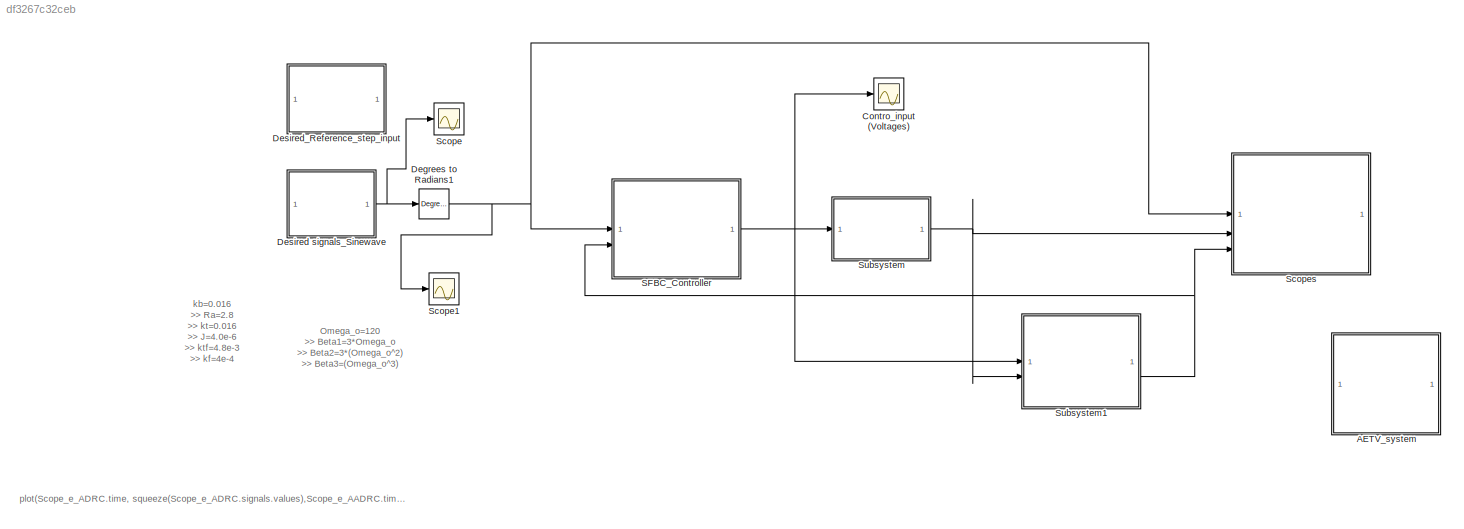
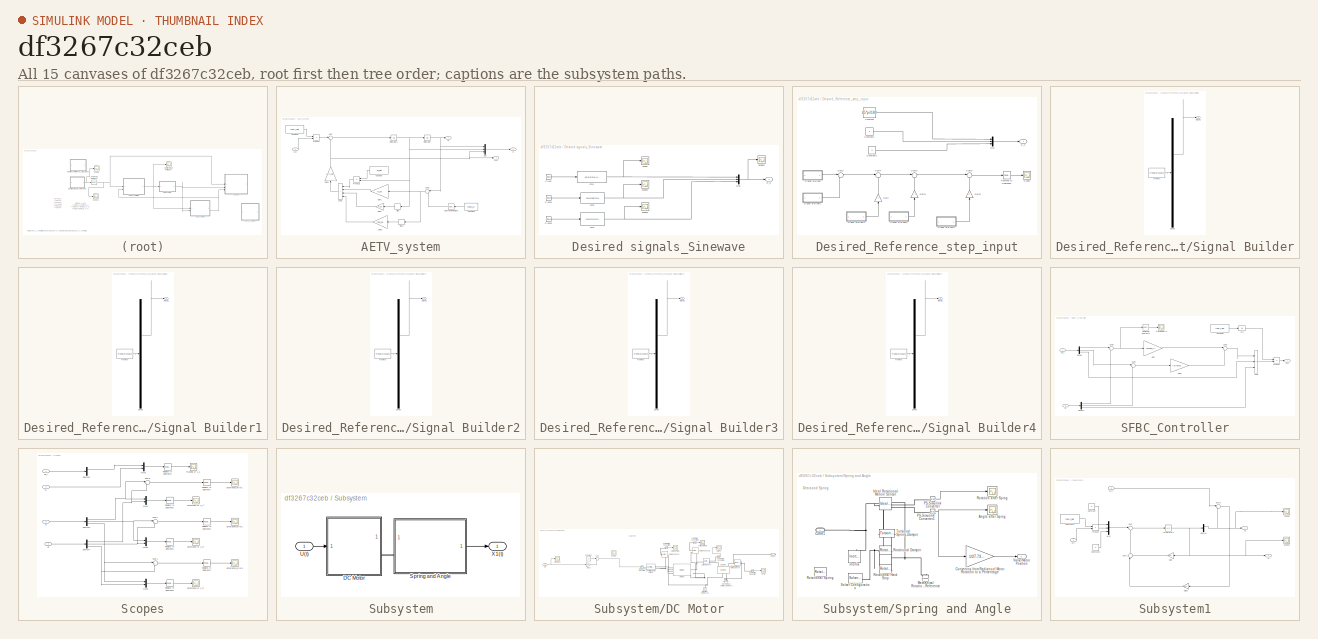
[diagram: thumbnail index - all 15 canvases of the model, root first then tree order]
MODEL slx_df3267c32ceb
KIND model
CONFIG AbsTol = auto
CONFIG EnableMultiTasking = on
CONFIG FixedStep = 0.001
CONFIG MaxStep = auto
CONFIG MinStep = auto
CONFIG PreLoadFcn = run("Control_Setting.m")\nrun("System_Setting.m")\n
CONFIG RelTol = 1e-3
CONFIG SampleTimeConstraint = Unconstrained
CONFIG SolverName = ode23t
CONFIG StartTime = 0.0
CONFIG StopTime = 15
BLOCK [SubSystem] AETV_system
  Commented = on
  NameLocation = top
BLOCK [Constant] AETV_system/Constant
  NameLocation = top
  Value = -B_aet
BLOCK [Constant] AETV_system/Constant1
  NameLocation = top
  Value = theta_o
BLOCK [Constant] AETV_system/Constant2
  Value = roa/J_aet
BLOCK [Reference] AETV_system/Degrees to Radians  REF=simulink_extras/Transformations/Degrees to
Radians
  NameLocation = top
  SourceBlock = simulink_extras/Transformations/Degrees to\nRadians
  SourceType = DegreesToRadians
BLOCK [Outport] AETV_system/F(x)
  Port = 3
BLOCK [Gain] AETV_system/Gain1
  Gain = -K_sp
  NameLocation = top
BLOCK [Gain] AETV_system/Gain2
  Gain = -F_so
  NameLocation = top
BLOCK [Gain] AETV_system/Gain3
  Gain = -Toa_ho
  NameLocation = top
BLOCK [Gain] AETV_system/Gain4
  Gain = 1/(J_aet)
  NameLocation = right
BLOCK [Integrator] AETV_system/Integrator
  InitialCondition = 12*pi/180
BLOCK [Integrator] AETV_system/Integrator1
BLOCK [Mux] AETV_system/Mux
  DisplayOption = bar
  Inputs = 3
BLOCK [Product] AETV_system/Product
  RndMeth = Zero
BLOCK [Product] AETV_system/Product1
  NameLocation = top
  RndMeth = Zero
BLOCK [Signum] AETV_system/Sign
  NameLocation = top
BLOCK [Signum] AETV_system/Sign1
  NameLocation = top
BLOCK [Sum] AETV_system/Sum
  Inputs = |++
BLOCK [Sum] AETV_system/Sum1
  IconShape = rectangular
  Inputs = |++++
  NameLocation = top
BLOCK [Sum] AETV_system/Sum2
  Inputs = |+-
  NameLocation = top
BLOCK [Inport] AETV_system/U(t)
BLOCK [Outport] AETV_system/X1
BLOCK [Outport] AETV_system/Xi
  Port = 2
BLOCK [Scope] Contro_input (Voltages)
  Floating = off
  NumInputPorts = 1
  ScopeSpecificationString = Simulink.scopes.TimeScopeBlockCfg('CurrentConfiguration', extmgr.ConfigurationSet(extmgr.Configuration('Core','General UI',true),extmgr.Configuration('Core','Source UI',true),extmgr.Configuration('Sources','WiredSimulink',true,'DataLogging',true,'DataLoggingVariableName','Scope_V_ADRC','DataLoggingSaveFormat','StructureWithTime','DataLoggingDecimation','1','DataLoggingDecimateData',true),extmgr.Co...<+1772ch>
BLOCK [Reference] Degrees to Radians1  REF=simulink_extras/Transformations/Degrees to
Radians
  SourceBlock = simulink_extras/Transformations/Degrees to\nRadians
  SourceType = DegreesToRadians
BLOCK [SubSystem] Desired signals_Sinewave
BLOCK [Clock] Desired signals_Sinewave/Clock
BLOCK [Clock] Desired signals_Sinewave/Clock1
BLOCK [Clock] Desired signals_Sinewave/Clock2
BLOCK [Fcn] Desired signals_Sinewave/Fcn1
  Expr = 10*sin(2*u)+10+7
BLOCK [Fcn] Desired signals_Sinewave/Fcn2
  Expr = 10*2*cos(2*u)
BLOCK [Fcn] Desired signals_Sinewave/Fcn3
  Expr = -10*2*2*sin(2*u)
BLOCK [Mux] Desired signals_Sinewave/Mux
  DisplayOption = bar
  Inputs = 3
BLOCK [Scope] Desired signals_Sinewave/Scope
  Floating = off
  NumInputPorts = 1
  ScopeSpecificationString = Simulink.scopes.TimeScopeBlockCfg('CurrentConfiguration', extmgr.ConfigurationSet(extmgr.Configuration('Core','General UI',true),extmgr.Configuration('Core','Source UI',true),extmgr.Configuration('Sources','WiredSimulink',true,'DataLoggingVariableName','ScopeData1'),extmgr.Configuration('Visuals','Time Domain',true,'SerializedDisplays',{struct('MinYLimReal','4.50012','MaxYLimReal','29.49999','YLab...<+1487ch>
BLOCK [Scope] Desired signals_Sinewave/Scope1
  Floating = off
  NumInputPorts = 1
  ScopeSpecificationString = Simulink.scopes.TimeScopeBlockCfg('CurrentConfiguration', extmgr.ConfigurationSet(extmgr.Configuration('Core','General UI',true),extmgr.Configuration('Core','Source UI',true),extmgr.Configuration('Sources','WiredSimulink',true,'DataLoggingVariableName','ScopeData2'),extmgr.Configuration('Visuals','Time Domain',true,'SerializedDisplays',{struct('MinYLimReal','-25.00000','MaxYLimReal','25.00000','YL...<+1490ch>
BLOCK [Scope] Desired signals_Sinewave/Scope2
  Floating = off
  NumInputPorts = 1
  ScopeSpecificationString = Simulink.scopes.TimeScopeBlockCfg('CurrentConfiguration', extmgr.ConfigurationSet(extmgr.Configuration('Core','General UI',true),extmgr.Configuration('Core','Source UI',true),extmgr.Configuration('Sources','WiredSimulink',true,'DataLoggingVariableName','ScopeData3'),extmgr.Configuration('Visuals','Time Domain',true,'SerializedDisplays',{struct('MinYLimReal','-49.99994','MaxYLimReal','49.99954','YL...<+1491ch>
BLOCK [Scope] Desired signals_Sinewave/Scope3
  Floating = off
  NumInputPorts = 1
  ScopeSpecificationString = Simulink.scopes.TimeScopeBlockCfg('CurrentConfiguration', extmgr.ConfigurationSet(extmgr.Configuration('Core','General UI',true),extmgr.Configuration('Core','Source UI',true),extmgr.Configuration('Sources','WiredSimulink',true,'DataLoggingVariableName','ScopeData4'),extmgr.Configuration('Visuals','Time Domain',true,'SerializedDisplays',{struct('MinYLimReal','-49.99994','MaxYLimReal','49.99954','YL...<+1472ch>
BLOCK [Outport] Desired signals_Sinewave/xi_d
BLOCK [SubSystem] Desired_Reference_step_input
BLOCK [Constant] Desired_Reference_step_input/Constant
  Value = 45*pi/180
BLOCK [Constant] Desired_Reference_step_input/Constant1
  Value = 0
BLOCK [Constant] Desired_Reference_step_input/Constant2
  Value = 0
BLOCK [Gain] Desired_Reference_step_input/Gain
  Gain = -1
  NameLocation = right
BLOCK [Gain] Desired_Reference_step_input/Gain1
  Gain = -1
  NameLocation = right
BLOCK [Gain] Desired_Reference_step_input/Gain2
  NameLocation = right
BLOCK [Mux] Desired_Reference_step_input/Mux
  DisplayOption = bar
  Inputs = 3
BLOCK [Reference] Desired_Reference_step_input/Radians to Degrees2  REF=simulink_extras/Transformations/Radians
to Degrees
  SourceBlock = simulink_extras/Transformations/Radians\nto Degrees
  SourceType = RadiansToDegrees
BLOCK [Scope] Desired_Reference_step_input/Scope
  Floating = off
  NumInputPorts = 1
  ScopeSpecificationString = C++SS(StrPVP('Location','[10, 60, 1376, 738]'),StrPVP('Open','off'),MxPVP('AxesTitles',54,'struct(''axes1'',''%<SignalLabel>'')'),MxPVP('ScopeGraphics',57,'struct(''FigureColor'',''[0.5 0.5 0.5]'',''AxesColor'',''[0 0 0]'',''AxesTickColor'',''[1 1 1]'',''LineColors'',''[1 1 0;1 0 1;0 1 1;1 0 0;0 1 0;0 0 1]'',''LineStyles'',''-|-|-|-|-|-'',''LineWidths'',''[0.5 0.5 0.5 0.5 0.5 0.5]'',''MarkerStyles...<+275ch>
BLOCK [SubSystem] Desired_Reference_step_input/Signal Builder
  ClipboardFcn = sigbuilder_block('clipboard');
  CloseFcn = sigbuilder_block('close');
  ContinueFcn = sigbuilder_block('continue')
  CopyFcn = sigbuilder_block('copy');
  DeleteFcn = sigbuilder_block('delete');
  LoadFcn = sigbuilder_block('load');
  MaskHideContents = on
  ModelCloseFcn = sigbuilder_block('modelClose');
  NameChangeFcn = sigbuilder_block('namechange');
  OpenFcn = sigbuilder_block('open',[437.25 117.75 550.5 394.5 ]);
  PauseFcn = sigbuilder_block('pause')
  PreSaveFcn = sigbuilder_block('preSave');
  StartFcn = sigbuilder_block('start');
  StopFcn = sigbuilder_block('stop');
  Tag = STV Subsys
BLOCK [Demux] Desired_Reference_step_input/Signal Builder/Demux
  DisplayOption = none
  Outputs = 1
  Tag = STV Demux
BLOCK [FromWorkspace] Desired_Reference_step_input/Signal Builder/FromWs
  Tag = STV FromWs
  VariableName = tuvar
BLOCK [Outport] Desired_Reference_step_input/Signal Builder/Signal 1
  Tag = STV Outport
BLOCK [SubSystem] Desired_Reference_step_input/Signal Builder1
  ClipboardFcn = sigbuilder_block('clipboard');
  CloseFcn = sigbuilder_block('close');
  ContinueFcn = sigbuilder_block('continue')
  CopyFcn = sigbuilder_block('copy');
  DeleteFcn = sigbuilder_block('delete');
  LoadFcn = sigbuilder_block('load');
  MaskHideContents = on
  ModelCloseFcn = sigbuilder_block('modelClose');
  NameChangeFcn = sigbuilder_block('namechange');
  OpenFcn = sigbuilder_block('open',[437.25 117.75 550.5 394.5 ]);
  PauseFcn = sigbuilder_block('pause')
  PreSaveFcn = sigbuilder_block('preSave');
  StartFcn = sigbuilder_block('start');
  StopFcn = sigbuilder_block('stop');
  Tag = STV Subsys
BLOCK [Demux] Desired_Reference_step_input/Signal Builder1/Demux
  DisplayOption = none
  Outputs = 1
  Tag = STV Demux
BLOCK [FromWorkspace] Desired_Reference_step_input/Signal Builder1/FromWs
  Tag = STV FromWs
  VariableName = tuvar
BLOCK [Outport] Desired_Reference_step_input/Signal Builder1/Signal 1
  Tag = STV Outport
BLOCK [SubSystem] Desired_Reference_step_input/Signal Builder2
  ClipboardFcn = sigbuilder_block('clipboard');
  CloseFcn = sigbuilder_block('close');
  ContinueFcn = sigbuilder_block('continue')
  CopyFcn = sigbuilder_block('copy');
  DeleteFcn = sigbuilder_block('delete');
  LoadFcn = sigbuilder_block('load');
  MaskHideContents = on
  ModelCloseFcn = sigbuilder_block('modelClose');
  NameChangeFcn = sigbuilder_block('namechange');
  OpenFcn = sigbuilder_block('open',[437.25 117.75 550.5 394.5 ]);
  PauseFcn = sigbuilder_block('pause')
  PreSaveFcn = sigbuilder_block('preSave');
  StartFcn = sigbuilder_block('start');
  StopFcn = sigbuilder_block('stop');
  Tag = STV Subsys
BLOCK [Demux] Desired_Reference_step_input/Signal Builder2/Demux
  DisplayOption = none
  Outputs = 1
  Tag = STV Demux
BLOCK [FromWorkspace] Desired_Reference_step_input/Signal Builder2/FromWs
  Tag = STV FromWs
  VariableName = tuvar
BLOCK [Outport] Desired_Reference_step_input/Signal Builder2/Signal 1
  Tag = STV Outport
BLOCK [SubSystem] Desired_Reference_step_input/Signal Builder3
  ClipboardFcn = sigbuilder_block('clipboard');
  CloseFcn = sigbuilder_block('close');
  ContinueFcn = sigbuilder_block('continue')
  CopyFcn = sigbuilder_block('copy');
  DeleteFcn = sigbuilder_block('delete');
  LoadFcn = sigbuilder_block('load');
  MaskHideContents = on
  ModelCloseFcn = sigbuilder_block('modelClose');
  NameChangeFcn = sigbuilder_block('namechange');
  OpenFcn = sigbuilder_block('open',[437.25 117.75 550.5 394.5 ]);
  PauseFcn = sigbuilder_block('pause')
  PreSaveFcn = sigbuilder_block('preSave');
  StartFcn = sigbuilder_block('start');
  StopFcn = sigbuilder_block('stop');
  Tag = STV Subsys
BLOCK [Demux] Desired_Reference_step_input/Signal Builder3/Demux
  DisplayOption = none
  Outputs = 1
  Tag = STV Demux
BLOCK [FromWorkspace] Desired_Reference_step_input/Signal Builder3/FromWs
  Tag = STV FromWs
  VariableName = tuvar
BLOCK [Outport] Desired_Reference_step_input/Signal Builder3/Signal 1
  Tag = STV Outport
BLOCK [SubSystem] Desired_Reference_step_input/Signal Builder4
  ClipboardFcn = sigbuilder_block('clipboard');
  CloseFcn = sigbuilder_block('close');
  ContinueFcn = sigbuilder_block('continue')
  CopyFcn = sigbuilder_block('copy');
  DeleteFcn = sigbuilder_block('delete');
  LoadFcn = sigbuilder_block('load');
  MaskHideContents = on
  ModelCloseFcn = sigbuilder_block('modelClose');
  NameChangeFcn = sigbuilder_block('namechange');
  OpenFcn = sigbuilder_block('open',[437.25 117.75 550.5 394.5 ]);
  PauseFcn = sigbuilder_block('pause')
  PreSaveFcn = sigbuilder_block('preSave');
  StartFcn = sigbuilder_block('start');
  StopFcn = sigbuilder_block('stop');
  Tag = STV Subsys
BLOCK [Demux] Desired_Reference_step_input/Signal Builder4/Demux
  DisplayOption = none
  Outputs = 1
  Tag = STV Demux
BLOCK [FromWorkspace] Desired_Reference_step_input/Signal Builder4/FromWs
  Tag = STV FromWs
  VariableName = tuvar
BLOCK [Outport] Desired_Reference_step_input/Signal Builder4/Signal 1
  Tag = STV Outport
BLOCK [Sum] Desired_Reference_step_input/Sum2
  Inputs = |++
BLOCK [Sum] Desired_Reference_step_input/Sum3
  Inputs = |++
BLOCK [Sum] Desired_Reference_step_input/Sum4
  Inputs = |++
BLOCK [Sum] Desired_Reference_step_input/Sum5
  Inputs = |+-
BLOCK [Outport] Desired_Reference_step_input/xi_d
BLOCK [SubSystem] SFBC_Controller
BLOCK [Constant] SFBC_Controller/Constant2
  Value = roa/J_aet
BLOCK [Demux] SFBC_Controller/Demux
  Outputs = 3
BLOCK [Demux] SFBC_Controller/Demux1
  Outputs = 3
BLOCK [Fcn] SFBC_Controller/Fcn
  Expr = 1/u
BLOCK [Gain] SFBC_Controller/Gain
  Gain = (omga_c)^2
BLOCK [Gain] SFBC_Controller/Gain1
  Gain = (2*(omga_c))
BLOCK [Product] SFBC_Controller/Product
  RndMeth = Zero
BLOCK [Reference] SFBC_Controller/Radians to Degrees4  REF=simulink_extras/Transformations/Radians
to Degrees
  NameLocation = top
  SourceBlock = simulink_extras/Transformations/Radians\nto Degrees
  SourceType = RadiansToDegrees
BLOCK [Sum] SFBC_Controller/Sum1
  Inputs = |++
BLOCK [Sum] SFBC_Controller/Sum2
  IconShape = rectangular
  Inputs = |++-
BLOCK [Sum] SFBC_Controller/Sum3
  Inputs = |+-
BLOCK [Sum] SFBC_Controller/Sum4
  Inputs = |+-
BLOCK [Scope] SFBC_Controller/Tracking erro
  Floating = off
  NumInputPorts = 1
  ScopeSpecificationString = Simulink.scopes.TimeScopeBlockCfg('CurrentConfiguration', extmgr.ConfigurationSet(extmgr.Configuration('Core','General UI',true),extmgr.Configuration('Core','Source UI',true),extmgr.Configuration('Sources','WiredSimulink',true,'DataLogging',true,'DataLoggingVariableName','Scope_e_ADRC','DataLoggingSaveFormat','StructureWithTime','DataLoggingDecimation','1','DataLoggingDecimateData',true),extmgr.Co...<+1758ch>
BLOCK [Outport] SFBC_Controller/U (t)
BLOCK [Inport] SFBC_Controller/Xd_i
BLOCK [Inport] SFBC_Controller/Xi^
  Port = 2
BLOCK [Scope] Scope
  Floating = off
  NumInputPorts = 1
  ScopeSpecificationString = Simulink.scopes.TimeScopeBlockCfg('CurrentConfiguration', extmgr.ConfigurationSet(extmgr.Configuration('Core','General UI',true),extmgr.Configuration('Core','Source UI',true),extmgr.Configuration('Sources','WiredSimulink',true,'DataLoggingVariableName','ScopeData1'),extmgr.Configuration('Visuals','Time Domain',true,'SerializedDisplays',{struct('MinYLimReal','-49.99994','MaxYLimReal','49.99954','YL...<+1568ch>
BLOCK [Scope] Scope1
  Floating = off
  NumInputPorts = 1
  ScopeSpecificationString = Simulink.scopes.TimeScopeBlockCfg('CurrentConfiguration', extmgr.ConfigurationSet(extmgr.Configuration('Core','General UI',true),extmgr.Configuration('Core','Source UI',true),extmgr.Configuration('Sources','WiredSimulink',true,'DataLoggingVariableName','ScopeData2'),extmgr.Configuration('Visuals','Time Domain',true,'SerializedDisplays',{struct('MinYLimReal','-0.87266','MaxYLimReal','0.87266','YLab...<+1549ch>
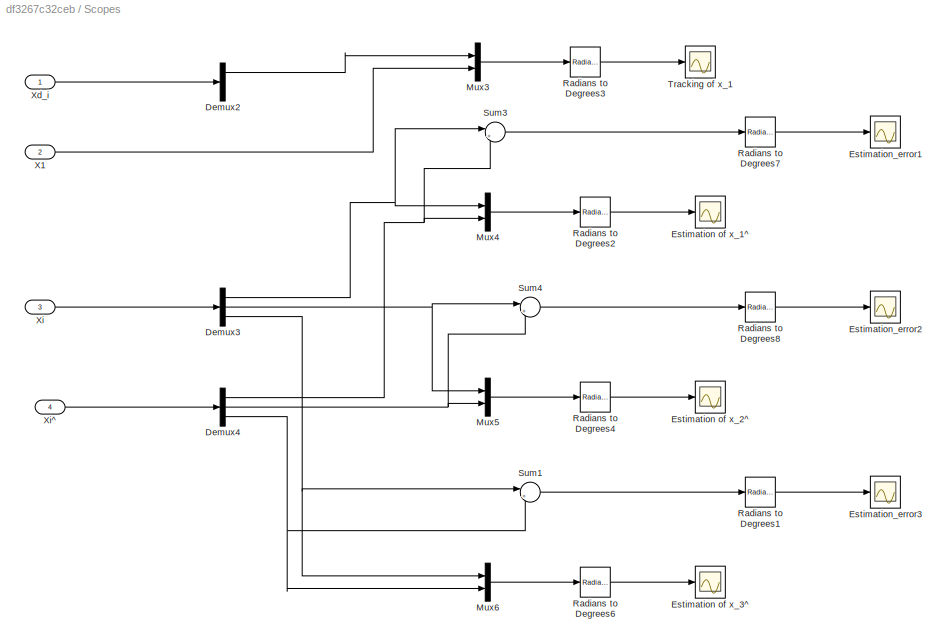
BLOCK [SubSystem] Scopes
BLOCK [Demux] Scopes/Demux2
  Outputs = 3
BLOCK [Demux] Scopes/Demux3
  Outputs = 3
BLOCK [Demux] Scopes/Demux4
  Outputs = 3
BLOCK [Scope] Scopes/Estimation of x_1^
  Floating = off
  NumInputPorts = 1
  ScopeSpecificationString = C++SS(StrPVP('Location','[188, 172, 1002, 629]'),StrPVP('Open','off'),MxPVP('AxesTitles',54,'struct(''axes1'',''%<SignalLabel>'')'),MxPVP('ScopeGraphics',57,'struct(''FigureColor'',''[0.5 0.5 0.5]'',''AxesColor'',''[0 0 0]'',''AxesTickColor'',''[1 1 1]'',''LineColors'',''[1 1 0;1 0 1;0 1 1;1 0 0;0 1 0;0 0 1]'',''LineStyles'',''-|-|-|-|-|-'',''LineWidths'',''[0.5 0.5 0.5 0.5 0.5 0.5]'',''MarkerStyl...<+272ch>  <repeated x3 — deduplicated; at blocks: Estimation of x_1^, Estimation of x_2^, Estimation of x_3^>
BLOCK [Scope] Scopes/Estimation of x_2^
  Floating = off
  NumInputPorts = 1
BLOCK [Scope] Scopes/Estimation of x_3^
  Floating = off
  NumInputPorts = 1
BLOCK [Scope] Scopes/Estimation_error1
  Floating = off
  NumInputPorts = 1
  ScopeSpecificationString = C++SS(StrPVP('Location','[188, 390, 512, 629]'),StrPVP('Open','off'),MxPVP('AxesTitles',54,'struct(''axes1'',''%<SignalLabel>'')'),MxPVP('ScopeGraphics',57,'struct(''FigureColor'',''[0.5 0.5 0.5]'',''AxesColor'',''[0 0 0]'',''AxesTickColor'',''[1 1 1]'',''LineColors'',''[1 1 0;1 0 1;0 1 1;1 0 0;0 1 0;0 0 1]'',''LineStyles'',''-|-|-|-|-|-'',''LineWidths'',''[0.5 0.5 0.5 0.5 0.5 0.5]'',''MarkerStyle...<+282ch>
BLOCK [Scope] Scopes/Estimation_error2
  Floating = off
  NumInputPorts = 1
  ScopeSpecificationString = C++SS(StrPVP('Location','[188, 390, 512, 629]'),StrPVP('Open','off'),MxPVP('AxesTitles',54,'struct(''axes1'',''%<SignalLabel>'')'),MxPVP('ScopeGraphics',57,'struct(''FigureColor'',''[0.5 0.5 0.5]'',''AxesColor'',''[0 0 0]'',''AxesTickColor'',''[1 1 1]'',''LineColors'',''[1 1 0;1 0 1;0 1 1;1 0 0;0 1 0;0 0 1]'',''LineStyles'',''-|-|-|-|-|-'',''LineWidths'',''[0.5 0.5 0.5 0.5 0.5 0.5]'',''MarkerStyle...<+282ch>
BLOCK [Scope] Scopes/Estimation_error3
  Floating = off
  NumInputPorts = 1
  ScopeSpecificationString = C++SS(StrPVP('Location','[188, 390, 512, 629]'),StrPVP('Open','off'),MxPVP('AxesTitles',54,'struct(''axes1'',''%<SignalLabel>'')'),MxPVP('ScopeGraphics',57,'struct(''FigureColor'',''[0.5 0.5 0.5]'',''AxesColor'',''[0 0 0]'',''AxesTickColor'',''[1 1 1]'',''LineColors'',''[1 1 0;1 0 1;0 1 1;1 0 0;0 1 0;0 0 1]'',''LineStyles'',''-|-|-|-|-|-'',''LineWidths'',''[0.5 0.5 0.5 0.5 0.5 0.5]'',''MarkerStyle...<+281ch>
BLOCK [Mux] Scopes/Mux3
  DisplayOption = bar
  Inputs = 2
BLOCK [Mux] Scopes/Mux4
  DisplayOption = bar
  Inputs = 2
BLOCK [Mux] Scopes/Mux5
  DisplayOption = bar
  Inputs = 2
BLOCK [Mux] Scopes/Mux6
  DisplayOption = bar
  Inputs = 2
BLOCK [Reference] Scopes/Radians to Degrees1  REF=simulink_extras/Transformations/Radians
to Degrees
  SourceBlock = simulink_extras/Transformations/Radians\nto Degrees
  SourceType = RadiansToDegrees
BLOCK [Reference] Scopes/Radians to Degrees2  REF=simulink_extras/Transformations/Radians
to Degrees
  SourceBlock = simulink_extras/Transformations/Radians\nto Degrees
  SourceType = RadiansToDegrees
BLOCK [Reference] Scopes/Radians to Degrees3  REF=simulink_extras/Transformations/Radians
to Degrees
  SourceBlock = simulink_extras/Transformations/Radians\nto Degrees
  SourceType = RadiansToDegrees
BLOCK [Reference] Scopes/Radians to Degrees4  REF=simulink_extras/Transformations/Radians
to Degrees
  SourceBlock = simulink_extras/Transformations/Radians\nto Degrees
  SourceType = RadiansToDegrees
BLOCK [Reference] Scopes/Radians to Degrees6  REF=simulink_extras/Transformations/Radians
to Degrees
  SourceBlock = simulink_extras/Transformations/Radians\nto Degrees
  SourceType = RadiansToDegrees
BLOCK [Reference] Scopes/Radians to Degrees7  REF=simulink_extras/Transformations/Radians
to Degrees
  SourceBlock = simulink_extras/Transformations/Radians\nto Degrees
  SourceType = RadiansToDegrees
BLOCK [Reference] Scopes/Radians to Degrees8  REF=simulink_extras/Transformations/Radians
to Degrees
  SourceBlock = simulink_extras/Transformations/Radians\nto Degrees
  SourceType = RadiansToDegrees
BLOCK [Sum] Scopes/Sum1
  Inputs = |+-
BLOCK [Sum] Scopes/Sum3
  Inputs = |+-
BLOCK [Sum] Scopes/Sum4
  Inputs = |+-
BLOCK [Scope] Scopes/Tracking of x_1
  Floating = off
  NumInputPorts = 1
  ScopeSpecificationString = Simulink.scopes.TimeScopeBlockCfg('CurrentConfiguration', extmgr.ConfigurationSet(extmgr.Configuration('Core','General UI',true),extmgr.Configuration('Core','Source UI',true),extmgr.Configuration('Sources','WiredSimulink',true,'DataLogging',true,'DataLoggingVariableName','Scope','DataLoggingSaveFormat','StructureWithTime','DataLoggingDecimation','1','DataLoggingDecimateData',true),extmgr.Configura...<+1845ch>
BLOCK [Inport] Scopes/X1
  Port = 2
BLOCK [Inport] Scopes/Xd_i
BLOCK [Inport] Scopes/Xi
  Port = 3
BLOCK [Inport] Scopes/Xi^
  Port = 4
BLOCK [SubSystem] Subsystem
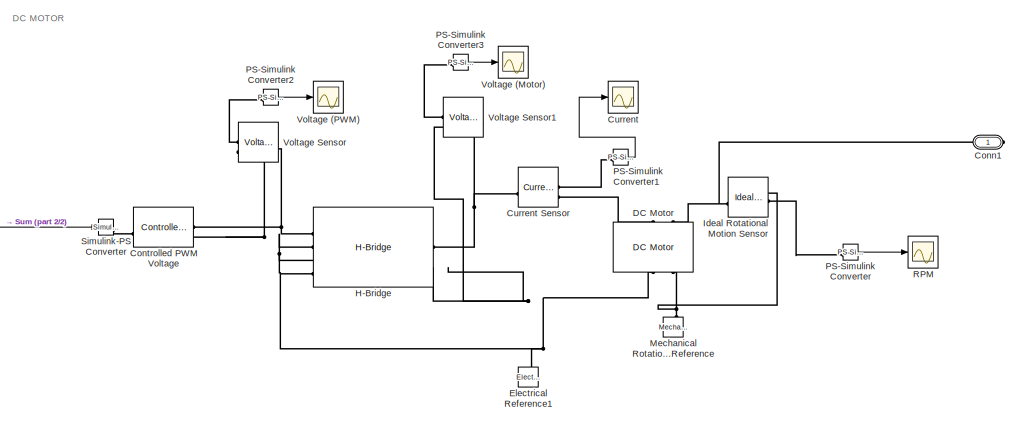
[diagram: Subsystem/DC Motor - part 1/2, right side, full height]
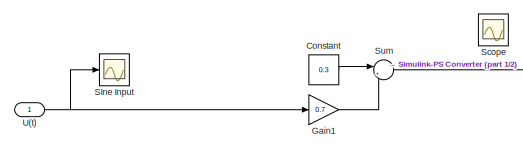
[diagram: Subsystem/DC Motor - part 2/2, middle left region]
BLOCK [SubSystem] Subsystem/DC Motor
BLOCK [PMIOPort] Subsystem/DC Motor/Conn1
  Side = Right
BLOCK [Constant] Subsystem/DC Motor/Constant
  Value = 0.3
BLOCK [Reference] Subsystem/DC Motor/Controlled PWM Voltage  REF=ee_lib/Integrated Circuits/Controlled PWM
Voltage
  SourceBlock = ee_lib/Integrated Circuits/Controlled PWM\nVoltage
  SourceType = Controlled PWM\nVoltage
BLOCK [Scope] Subsystem/DC Motor/Current
  Floating = off
  NumInputPorts = 1
  ScopeSpecificationString = Simulink.scopes.TimeScopeBlockCfg('CurrentConfiguration', extmgr.ConfigurationSet(extmgr.Configuration('Core','General UI',true),extmgr.Configuration('Core','Source UI',true),extmgr.Configuration('Sources','WiredSimulink',true,'DataLoggingVariableName','ScopeData1'),extmgr.Configuration('Visuals','Time Domain',true,'SerializedDisplays',{struct('MinYLimReal','-1.48991','MaxYLimReal','13.40916','YLa...<+1464ch>
BLOCK [Reference] Subsystem/DC Motor/Current Sensor  REF=fl_lib/Electrical/Electrical Sensors/Current Sensor
  SourceBlock = fl_lib/Electrical/Electrical Sensors/Current Sensor
  SourceType = Current Sensor
BLOCK [Reference] Subsystem/DC Motor/DC Motor  REF=ee_lib/Electromechanical/Brushed Motors/DC Motor
  NameLocation = right
  SourceBlock = ee_lib/Electromechanical/Brushed Motors/DC Motor
  SourceType = DC Motor
BLOCK [Reference] Subsystem/DC Motor/Electrical Reference1  REF=fl_lib/Electrical/Electrical Elements/Electrical Reference
  NameLocation = right
  SourceBlock = fl_lib/Electrical/Electrical Elements/Electrical Reference
  SourceType = Electrical Reference
BLOCK [Gain] Subsystem/DC Motor/Gain1
  Gain = 0.7
BLOCK [Reference] Subsystem/DC Motor/H-Bridge  REF=ee_lib/Semiconductors &
Converters/Converters/H-Bridge
  SourceBlock = ee_lib/Semiconductors &\nConverters/Converters/H-Bridge
  SourceType = H-Bridge
BLOCK [Reference] Subsystem/DC Motor/Ideal Rotational Motion Sensor  REF=fl_lib/Mechanical/Mechanical Sensors/Ideal Rotational
Motion Sensor
  SourceBlock = fl_lib/Mechanical/Mechanical Sensors/Ideal Rotational\nMotion Sensor
  SourceType = Ideal Rotational\nMotion Sensor
BLOCK [Reference] Subsystem/DC Motor/Mechanical Rotational Reference  REF=fl_lib/Mechanical/Rotational Elements/Mechanical
Rotational Reference
  NameLocation = right
  SourceBlock = fl_lib/Mechanical/Rotational Elements/Mechanical\nRotational Reference
  SourceType = Mechanical\nRotational Reference
BLOCK [Reference] Subsystem/DC Motor/PS-Simulink Converter  REF=nesl_utility/PS-Simulink
Converter
  SourceBlock = nesl_utility/PS-Simulink\nConverter
  SourceType = PS-Simulink\nConverter
BLOCK [Reference] Subsystem/DC Motor/PS-Simulink Converter1  REF=nesl_utility/PS-Simulink
Converter
  SourceBlock = nesl_utility/PS-Simulink\nConverter
  SourceType = PS-Simulink\nConverter
BLOCK [Reference] Subsystem/DC Motor/PS-Simulink Converter2  REF=nesl_utility/PS-Simulink
Converter
  SourceBlock = nesl_utility/PS-Simulink\nConverter
  SourceType = PS-Simulink\nConverter
BLOCK [Reference] Subsystem/DC Motor/PS-Simulink Converter3  REF=nesl_utility/PS-Simulink
Converter
  SourceBlock = nesl_utility/PS-Simulink\nConverter
  SourceType = PS-Simulink\nConverter
BLOCK [Scope] Subsystem/DC Motor/RPM
  Floating = off
  NumInputPorts = 1
  ScopeSpecificationString = Simulink.scopes.TimeScopeBlockCfg('CurrentConfiguration', extmgr.ConfigurationSet(extmgr.Configuration('Core','General UI',true),extmgr.Configuration('Core','Source UI',true),extmgr.Configuration('Sources','WiredSimulink',true),extmgr.Configuration('Visuals','Time Domain',true,'SerializedDisplays',{struct('MinYLimReal','-773.78186','MaxYLimReal','809.50381','YLabelReal','','MinYLimMag',' 0.00000',...<+1552ch>
BLOCK [Scope] Subsystem/DC Motor/SIne Input
  Floating = off
  NumInputPorts = 1
  ScopeSpecificationString = Simulink.scopes.TimeScopeBlockCfg('CurrentConfiguration', extmgr.ConfigurationSet(extmgr.Configuration('Core','General UI',true),extmgr.Configuration('Core','Source UI',true),extmgr.Configuration('Sources','WiredSimulink',true,'DataLoggingVariableName','ScopeData4'),extmgr.Configuration('Visuals','Time Domain',true,'SerializedDisplays',{struct('MinYLimReal','-4.6111','MaxYLimReal','3.05846','YLabe...<+1537ch>
BLOCK [Scope] Subsystem/DC Motor/Scope
  Floating = off
  NumInputPorts = 1
  ScopeSpecificationString = Simulink.scopes.TimeScopeBlockCfg('CurrentConfiguration', extmgr.ConfigurationSet(extmgr.Configuration('Core','General UI',true),extmgr.Configuration('Core','Source UI',true),extmgr.Configuration('Sources','WiredSimulink',true,'DataLoggingVariableName','ScopeData3'),extmgr.Configuration('Visuals','Time Domain',true,'SerializedDisplays',{struct('MinYLimReal','-2.88295','MaxYLimReal','2.38779','YLab...<+1451ch>
BLOCK [Reference] Subsystem/DC Motor/Simulink-PS Converter  REF=nesl_utility/Simulink-PS
Converter
  SourceBlock = nesl_utility/Simulink-PS\nConverter
  SourceType = Simulink-PS\nConverter
BLOCK [Sum] Subsystem/DC Motor/Sum
  Inputs = |++
BLOCK [Inport] Subsystem/DC Motor/U(t)
BLOCK [Scope] Subsystem/DC Motor/Voltage (Motor)
  Floating = off
  NumInputPorts = 1
  ScopeSpecificationString = Simulink.scopes.TimeScopeBlockCfg('CurrentConfiguration', extmgr.ConfigurationSet(extmgr.Configuration('Core','General UI',true),extmgr.Configuration('Core','Source UI',true),extmgr.Configuration('Sources','WiredSimulink',true,'DataLoggingVariableName','ScopeData3'),extmgr.Configuration('Visuals','Time Domain',true,'SerializedDisplays',{struct('MinYLimReal','-1.70139','MaxYLimReal','13.50548','YLa...<+1491ch>
BLOCK [Scope] Subsystem/DC Motor/Voltage (PWM)
  Floating = off
  NumInputPorts = 1
  ScopeSpecificationString = Simulink.scopes.TimeScopeBlockCfg('CurrentConfiguration', extmgr.ConfigurationSet(extmgr.Configuration('Core','General UI',true),extmgr.Configuration('Core','Source UI',true),extmgr.Configuration('Sources','WiredSimulink',true,'DataLoggingVariableName','ScopeData2'),extmgr.Configuration('Visuals','Time Domain',true,'SerializedDisplays',{struct('MinYLimReal','-0.625','MaxYLimReal','5.625','YLabelRe...<+1506ch>
BLOCK [Reference] Subsystem/DC Motor/Voltage Sensor  REF=fl_lib/Electrical/Electrical Sensors/Voltage Sensor
  SourceBlock = fl_lib/Electrical/Electrical Sensors/Voltage Sensor
  SourceType = Voltage Sensor
BLOCK [Reference] Subsystem/DC Motor/Voltage Sensor1  REF=fl_lib/Electrical/Electrical Sensors/Voltage Sensor
  SourceBlock = fl_lib/Electrical/Electrical Sensors/Voltage Sensor
  SourceType = Voltage Sensor
BLOCK [SubSystem] Subsystem/Spring and Angle
BLOCK [Scope] Subsystem/Spring and Angle/Angle after Sping
  Floating = off
  NumInputPorts = 1
  ScopeSpecificationString = Simulink.scopes.TimeScopeBlockCfg('CurrentConfiguration', extmgr.ConfigurationSet(extmgr.Configuration('Core','General UI',true),extmgr.Configuration('Core','Source UI',true),extmgr.Configuration('Sources','WiredSimulink',true,'DataLoggingVariableName','ScopeData2'),extmgr.Configuration('Visuals','Time Domain',true,'SerializedDisplays',{struct('MinYLimReal','-3.4675','MaxYLimReal','31.20748','YLab...<+1507ch>
BLOCK [PMIOPort] Subsystem/Spring and Angle/Conn1
  Side = Left
BLOCK [Gain] Subsystem/Spring and Angle/Converting from Radians of Motor Rotation to a Percentage
  Gain = 1/27.73873597
BLOCK [Reference] Subsystem/Spring and Angle/Ideal Rotational Motion Sensor  REF=fl_lib/Mechanical/Mechanical Sensors/Ideal Rotational
Motion Sensor
  SourceBlock = fl_lib/Mechanical/Mechanical Sensors/Ideal Rotational\nMotion Sensor
  SourceType = Ideal Rotational\nMotion Sensor
BLOCK [Reference] Subsystem/Spring and Angle/Inertia  REF=fl_lib/Mechanical/Rotational Elements/Inertia
  NameLocation = right
  SourceBlock = fl_lib/Mechanical/Rotational Elements/Inertia
  SourceType = Inertia
BLOCK [Reference] Subsystem/Spring and Angle/Mechanical Rotational Reference  REF=fl_lib/Mechanical/Rotational Elements/Mechanical
Rotational Reference
  NameLocation = right
  SourceBlock = fl_lib/Mechanical/Rotational Elements/Mechanical\nRotational Reference
  SourceType = Mechanical\nRotational Reference
BLOCK [Reference] Subsystem/Spring and Angle/PS-Simulink Converter  REF=nesl_utility/PS-Simulink
Converter
  SourceBlock = nesl_utility/PS-Simulink\nConverter
  SourceType = PS-Simulink\nConverter
BLOCK [Reference] Subsystem/Spring and Angle/PS-Simulink Converter1  REF=nesl_utility/PS-Simulink
Converter
  SourceBlock = nesl_utility/PS-Simulink\nConverter
  SourceType = PS-Simulink\nConverter
BLOCK [Scope] Subsystem/Spring and Angle/Rotation after Sping
  Floating = off
  NumInputPorts = 1
  ScopeSpecificationString = Simulink.scopes.TimeScopeBlockCfg('CurrentConfiguration', extmgr.ConfigurationSet(extmgr.Configuration('Core','General UI',true),extmgr.Configuration('Core','Source UI',true),extmgr.Configuration('Sources','WiredSimulink',true,'DataLoggingVariableName','ScopeData1'),extmgr.Configuration('Visuals','Time Domain',true,'SerializedDisplays',{struct('MinYLimReal','-760.72766','MaxYLimReal','808.75266','...<+1518ch>
BLOCK [Reference] Subsystem/Spring and Angle/Rotational Damper  REF=fl_lib/Mechanical/Rotational Elements/Rotational Damper
  SourceBlock = fl_lib/Mechanical/Rotational Elements/Rotational Damper
  SourceType = Rotational Damper
BLOCK [Reference] Subsystem/Spring and Angle/Rotational Hard Stop  REF=fl_lib/Mechanical/Rotational Elements/Rotational Hard Stop
  SourceBlock = fl_lib/Mechanical/Rotational Elements/Rotational Hard Stop
  SourceType = Rotational Hard Stop
BLOCK [Reference] Subsystem/Spring and Angle/Rotational Spring  REF=fl_lib/Mechanical/Rotational Elements/Rotational Spring
  Commented = on
  SourceBlock = fl_lib/Mechanical/Rotational Elements/Rotational Spring
  SourceType = Rotational Spring
BLOCK [Reference] Subsystem/Spring and Angle/Solver Configuration  REF=nesl_utility/Solver
Configuration
  SourceBlock = nesl_utility/Solver\nConfiguration
  SourceType = Solver\nConfiguration
BLOCK [Reference] Subsystem/Spring and Angle/Torsional Spring-Damper  REF=sdl_lib/Couplings & Drives/Torsional
Spring-Damper
  SourceBlock = sdl_lib/Couplings & Drives/Torsional\nSpring-Damper
  SourceType = Torsional\nSpring-Damper
BLOCK [Outport] Subsystem/Spring and Angle/Valve//Motor Position
BLOCK [Inport] Subsystem/U(t)
BLOCK [Outport] Subsystem/X1(t)
BLOCK [SubSystem] Subsystem1
  NameLocation = top
BLOCK [Constant] Subsystem1/Constant
  Value = 0
BLOCK [Constant] Subsystem1/Constant1
  Value = 0
BLOCK [Constant] Subsystem1/Constant2
  Value = roa/J_aet
BLOCK [Demux] Subsystem1/Demux
  Outputs = 3
BLOCK [Gain] Subsystem1/Gain
  Gain = [0 1 0;0 0 1;0 0 0]
  Multiplication = Matrix(K*u)
  NameLocation = top
BLOCK [Gain] Subsystem1/Gain2
  Gain = [Beta1 Beta2 Beta3]'
  NameLocation = top
BLOCK [Integrator] Subsystem1/Integrator1
  InitialCondition = [12*pi/180 0 0]'
BLOCK [Mux] Subsystem1/Mux
  DisplayOption = bar
  Inputs = 3
BLOCK [Product] Subsystem1/Product
  RndMeth = Zero
BLOCK [Scope] Subsystem1/Scope
  Floating = off
  NumInputPorts = 1
  ScopeSpecificationString = C++SS(StrPVP('Location','[188, 390, 512, 629]'),StrPVP('Open','off'),MxPVP('AxesTitles',54,'struct(''axes1'',''%<SignalLabel>'')'),StrPVP('SaveName','ScopeData3'),StrPVP('DataFormat','StructureWithTime'),StrPVP('BlockParamSampleTime','0'),StrPVP('LimitDataPoints','on'),StrPVP('Decimation','1'),StrPVP('BlockParamSampleInput','off'))
BLOCK [Scope] Subsystem1/Scope1
  Floating = off
  NumInputPorts = 1
  ScopeSpecificationString = C++SS(StrPVP('Location','[188, 390, 512, 629]'),StrPVP('Open','off'),MxPVP('AxesTitles',54,'struct(''axes1'',''%<SignalLabel>'')'),MxPVP('ScopeGraphics',57,'struct(''FigureColor'',''[0.5 0.5 0.5]'',''AxesColor'',''[0 0 0]'',''AxesTickColor'',''[1 1 1]'',''LineColors'',''[1 1 0;1 0 1;0 1 1;1 0 0;0 1 0;0 0 1]'',''LineStyles'',''-|-|-|-|-|-'',''LineWidths'',''[0.5 0.5 0.5 0.5 0.5 0.5]'',''MarkerStyle...<+243ch>
BLOCK [Sum] Subsystem1/Sum
  Inputs = |++
BLOCK [Sum] Subsystem1/Sum1
  Inputs = |++
  NameLocation = right
BLOCK [Sum] Subsystem1/Sum2
  Inputs = |+-
BLOCK [Inport] Subsystem1/U(t)
BLOCK [Outport] Subsystem1/X1
BLOCK [Inport] Subsystem1/X1(t)
  Port = 2
BLOCK [Outport] Subsystem1/Xi^
  Port = 2
ANNOTATION (root): Omega_o=120 >> Beta1=3*Omega_o >> Beta2=3*(Omega_o^2) >> Beta3=(Omega_o^3)
ANNOTATION (root): kb=0.016 >> Ra=2.8 >> kt=0.016 >> J=4.0e-6 >> ktf=4.8e-3 >> kf=4e-4 >> theta_o=0.0349 >> ksp=0.0247 >> n=16.95 >> kpre=0.107 >> Vbat=0.24 omga_c=40
ANNOTATION (root): plot(Scope_e_ADRC.time, squeeze(Scope_e_ADRC.signals.values),Scope_e_AADRC.time, squeeze(Scope_e_AADRC.signals.values))
ANNOTATION Subsystem/DC Motor: DC MOTOR
ANNOTATION Subsystem/Spring and Angle: Gears and Spring
LINE AETV_system/Constant1:1 -> AETV_system/Degrees to Radians:1
LINE AETV_system/Constant2:1 -> AETV_system/Product:1
LINE AETV_system/Constant:1 -> AETV_system/Product1:1
LINE AETV_system/Degrees to Radians:1 -> AETV_system/Sum2:2
LINE AETV_system/Gain1:1 -> AETV_system/Sum1:2
LINE AETV_system/Gain2:1 -> AETV_system/Sum1:3
LINE AETV_system/Gain3:1 -> AETV_system/Sum1:4
NET AETV_system/Gain4:1 -> AETV_system/F(x):1, AETV_system/Mux:3, AETV_system/Sum:2
NET AETV_system/Integrator1:1 -> AETV_system/Integrator:1, AETV_system/Mux:2, AETV_system/Product1:2, AETV_system/Sign:1
NET AETV_system/Integrator:1 -> AETV_system/Mux:1, AETV_system/Sum2:1, AETV_system/X1:1
LINE AETV_system/Mux:1 -> AETV_system/Xi:1
LINE AETV_system/Product1:1 -> AETV_system/Sum1:1
LINE AETV_system/Product:1 -> AETV_system/Sum:1
LINE AETV_system/Sign1:1 -> AETV_system/Gain3:1
LINE AETV_system/Sign:1 -> AETV_system/Gain2:1
LINE AETV_system/Sum1:1 -> AETV_system/Gain4:1
NET AETV_system/Sum2:1 -> AETV_system/Gain1:1, AETV_system/Sign1:1
LINE AETV_system/Sum:1 -> AETV_system/Integrator1:1
LINE AETV_system/U(t):1 -> AETV_system/Product:2
NET Degrees to Radians1:1 -> SFBC_Controller:1, Scope1:1, Scopes:1
LINE Desired signals_Sinewave/Clock1:1 -> Desired signals_Sinewave/Fcn2:1
LINE Desired signals_Sinewave/Clock2:1 -> Desired signals_Sinewave/Fcn3:1
LINE Desired signals_Sinewave/Clock:1 -> Desired signals_Sinewave/Fcn1:1
NET Desired signals_Sinewave/Fcn1:1 -> Desired signals_Sinewave/Mux:1, Desired signals_Sinewave/Scope:1
NET Desired signals_Sinewave/Fcn2:1 -> Desired signals_Sinewave/Mux:2, Desired signals_Sinewave/Scope1:1
NET Desired signals_Sinewave/Fcn3:1 -> Desired signals_Sinewave/Mux:3, Desired signals_Sinewave/Scope2:1
NET Desired signals_Sinewave/Mux:1 -> Desired signals_Sinewave/Scope3:1, Desired signals_Sinewave/xi_d:1
NET Desired signals_Sinewave:1 -> Degrees to Radians1:1, Scope:1
LINE Desired_Reference_step_input/Constant1:1 -> Desired_Reference_step_input/Mux:2
LINE Desired_Reference_step_input/Constant2:1 -> Desired_Reference_step_input/Mux:3
LINE Desired_Reference_step_input/Constant:1 -> Desired_Reference_step_input/Mux:1
LINE Desired_Reference_step_input/Gain1:1 -> Desired_Reference_step_input/Sum3:2
LINE Desired_Reference_step_input/Gain2:1 -> Desired_Reference_step_input/Sum5:2
LINE Desired_Reference_step_input/Gain:1 -> Desired_Reference_step_input/Sum4:2
LINE Desired_Reference_step_input/Mux:1 -> Desired_Reference_step_input/xi_d:1
LINE Desired_Reference_step_input/Radians to Degrees2:1 -> Desired_Reference_step_input/Scope:1
LINE Desired_Reference_step_input/Signal Builder1:1 -> Desired_Reference_step_input/Sum2:2
LINE Desired_Reference_step_input/Signal Builder2:1 -> Desired_Reference_step_input/Gain:1
LINE Desired_Reference_step_input/Signal Builder3:1 -> Desired_Reference_step_input/Gain1:1
LINE Desired_Reference_step_input/Signal Builder4:1 -> Desired_Reference_step_input/Gain2:1
LINE Desired_Reference_step_input/Signal Builder:1 -> Desired_Reference_step_input/Sum2:1
LINE Desired_Reference_step_input/Sum2:1 -> Desired_Reference_step_input/Sum4:1
LINE Desired_Reference_step_input/Sum3:1 -> Desired_Reference_step_input/Sum5:1
LINE Desired_Reference_step_input/Sum4:1 -> Desired_Reference_step_input/Sum3:1
LINE Desired_Reference_step_input/Sum5:1 -> Desired_Reference_step_input/Radians to Degrees2:1
LINE SFBC_Controller/Constant2:1 -> SFBC_Controller/Fcn:1
LINE SFBC_Controller/Demux1:1 -> SFBC_Controller/Sum3:2
LINE SFBC_Controller/Demux1:2 -> SFBC_Controller/Sum4:2
LINE SFBC_Controller/Demux1:3 -> SFBC_Controller/Sum2:3
LINE SFBC_Controller/Demux:1 -> SFBC_Controller/Sum3:1
LINE SFBC_Controller/Demux:2 -> SFBC_Controller/Sum4:1
LINE SFBC_Controller/Demux:3 -> SFBC_Controller/Sum2:2
LINE SFBC_Controller/Fcn:1 -> SFBC_Controller/Product:1
LINE SFBC_Controller/Gain1:1 -> SFBC_Controller/Sum1:2
LINE SFBC_Controller/Gain:1 -> SFBC_Controller/Sum1:1
LINE SFBC_Controller/Product:1 -> SFBC_Controller/U (t):1
LINE SFBC_Controller/Radians to Degrees4:1 -> SFBC_Controller/Tracking erro:1
LINE SFBC_Controller/Sum1:1 -> SFBC_Controller/Sum2:1
LINE SFBC_Controller/Sum2:1 -> SFBC_Controller/Product:2
NET SFBC_Controller/Sum3:1 -> SFBC_Controller/Gain:1, SFBC_Controller/Radians to Degrees4:1
LINE SFBC_Controller/Sum4:1 -> SFBC_Controller/Gain1:1
LINE SFBC_Controller/Xd_i:1 -> SFBC_Controller/Demux:1
LINE SFBC_Controller/Xi^:1 -> SFBC_Controller/Demux1:1
NET SFBC_Controller:1 -> Contro_input (Voltages):1, Subsystem1:1, Subsystem:1
LINE Scopes/Demux2:1 -> Scopes/Mux3:1
NET Scopes/Demux3:1 -> Scopes/Mux4:1, Scopes/Sum3:1
NET Scopes/Demux3:2 -> Scopes/Mux5:1, Scopes/Sum4:1
NET Scopes/Demux3:3 -> Scopes/Mux6:1, Scopes/Sum1:1
NET Scopes/Demux4:1 -> Scopes/Mux4:2, Scopes/Sum3:2
NET Scopes/Demux4:2 -> Scopes/Mux5:2, Scopes/Sum4:2
NET Scopes/Demux4:3 -> Scopes/Mux6:2, Scopes/Sum1:2
LINE Scopes/Mux3:1 -> Scopes/Radians to Degrees3:1
LINE Scopes/Mux4:1 -> Scopes/Radians to Degrees2:1
LINE Scopes/Mux5:1 -> Scopes/Radians to Degrees4:1
LINE Scopes/Mux6:1 -> Scopes/Radians to Degrees6:1
LINE Scopes/Radians to Degrees1:1 -> Scopes/Estimation_error3:1
LINE Scopes/Radians to Degrees2:1 -> Scopes/Estimation of x_1^:1
LINE Scopes/Radians to Degrees3:1 -> Scopes/Tracking of x_1:1
LINE Scopes/Radians to Degrees4:1 -> Scopes/Estimation of x_2^:1
LINE Scopes/Radians to Degrees6:1 -> Scopes/Estimation of x_3^:1
LINE Scopes/Radians to Degrees7:1 -> Scopes/Estimation_error1:1
LINE Scopes/Radians to Degrees8:1 -> Scopes/Estimation_error2:1
LINE Scopes/Sum1:1 -> Scopes/Radians to Degrees1:1
LINE Scopes/Sum3:1 -> Scopes/Radians to Degrees7:1
LINE Scopes/Sum4:1 -> Scopes/Radians to Degrees8:1
LINE Scopes/X1:1 -> Scopes/Mux3:2
LINE Scopes/Xd_i:1 -> Scopes/Demux2:1
LINE Scopes/Xi:1 -> Scopes/Demux3:1
LINE Scopes/Xi^:1 -> Scopes/Demux4:1
LINE Subsystem/DC Motor/Constant:1 -> Subsystem/DC Motor/Sum:1
LINE Subsystem/DC Motor/Gain1:1 -> Subsystem/DC Motor/Sum:2
LINE Subsystem/DC Motor/PS-Simulink Converter1:1 -> Subsystem/DC Motor/Current:1
LINE Subsystem/DC Motor/PS-Simulink Converter2:1 -> Subsystem/DC Motor/Voltage (PWM):1
LINE Subsystem/DC Motor/PS-Simulink Converter3:1 -> Subsystem/DC Motor/Voltage (Motor):1
LINE Subsystem/DC Motor/PS-Simulink Converter:1 -> Subsystem/DC Motor/RPM:1
LINE Subsystem/DC Motor/Sum:1 -> Subsystem/DC Motor/Simulink-PS Converter:1
NET Subsystem/DC Motor/U(t):1 -> Subsystem/DC Motor/Gain1:1, Subsystem/DC Motor/SIne Input:1
LINE Subsystem/Spring and Angle/Converting from Radians of Motor Rotation to a Percentage:1 -> Subsystem/Spring and Angle/Valve//Motor Position:1
NET Subsystem/Spring and Angle/PS-Simulink Converter1:1 -> Subsystem/Spring and Angle/Angle after Sping:1, Subsystem/Spring and Angle/Converting from Radians of Motor Rotation to a Percentage:1
LINE Subsystem/Spring and Angle/PS-Simulink Converter:1 -> Subsystem/Spring and Angle/Rotation after Sping:1
LINE Subsystem/Spring and Angle:1 -> Subsystem/X1(t):1
LINE Subsystem/U(t):1 -> Subsystem/DC Motor:1
LINE Subsystem1/Constant1:1 -> Subsystem1/Mux:3
LINE Subsystem1/Constant2:1 -> Subsystem1/Product:1
LINE Subsystem1/Constant:1 -> Subsystem1/Mux:1
NET Subsystem1/Demux:1 -> Subsystem1/Scope:1, Subsystem1/Sum2:2, Subsystem1/X1:1
LINE Subsystem1/Gain2:1 -> Subsystem1/Sum1:1
LINE Subsystem1/Gain:1 -> Subsystem1/Sum1:2
NET Subsystem1/Integrator1:1 -> Subsystem1/Demux:1, Subsystem1/Gain:1, Subsystem1/Scope1:1, Subsystem1/Xi^:1
LINE Subsystem1/Mux:1 -> Subsystem1/Sum:1
LINE Subsystem1/Product:1 -> Subsystem1/Mux:2
LINE Subsystem1/Sum1:1 -> Subsystem1/Sum:2
LINE Subsystem1/Sum2:1 -> Subsystem1/Gain2:1
LINE Subsystem1/Sum:1 -> Subsystem1/Integrator1:1
LINE Subsystem1/U(t):1 -> Subsystem1/Product:2
LINE Subsystem1/X1(t):1 -> Subsystem1/Sum2:1
NET Subsystem1:2 -> SFBC_Controller:2, Scopes:4
NET Subsystem:1 -> Scopes:2, Subsystem1:2
PNET net1: Subsystem/DC Motor/Conn1:RConn1 -- Subsystem/DC Motor/DC Motor:LConn2 -- Subsystem/DC Motor/Ideal Rotational Motion Sensor:LConn1
PLINE Subsystem/DC Motor/Controlled PWM Voltage:LConn1 -- Subsystem/DC Motor/Simulink-PS Converter:RConn1
PNET net2: Subsystem/DC Motor/Controlled PWM Voltage:RConn1 -- Subsystem/DC Motor/H-Bridge:LConn1 -- Subsystem/DC Motor/Voltage Sensor:LConn1
PNET net3: Subsystem/DC Motor/Controlled PWM Voltage:RConn2 -- Subsystem/DC Motor/DC Motor:RConn1 -- Subsystem/DC Motor/Electrical Reference1:LConn1 -- Subsystem/DC Motor/H-Bridge:LConn2 -- Subsystem/DC Motor/H-Bridge:LConn3 -- Subsystem/DC Motor/H-Bridge:LConn4 -- Subsystem/DC Motor/H-Bridge:RConn2 -- Subsystem/DC Motor/Voltage Sensor1:RConn2 -- Subsystem/DC Motor/Voltage Sensor:RConn2
PNET net4: Subsystem/DC Motor/Current Sensor:LConn1 -- Subsystem/DC Motor/H-Bridge:RConn1 -- Subsystem/DC Motor/Voltage Sensor1:LConn1
PLINE Subsystem/DC Motor/Current Sensor:RConn1 -- Subsystem/DC Motor/PS-Simulink Converter1:LConn1
PLINE Subsystem/DC Motor/Current Sensor:RConn2 -- Subsystem/DC Motor/DC Motor:LConn1
PNET net5: Subsystem/DC Motor/DC Motor:RConn2 -- Subsystem/DC Motor/Ideal Rotational Motion Sensor:RConn1 -- Subsystem/DC Motor/Mechanical Rotational Reference:LConn1
PLINE Subsystem/DC Motor/Ideal Rotational Motion Sensor:RConn2 -- Subsystem/DC Motor/PS-Simulink Converter:LConn1
PLINE Subsystem/DC Motor/PS-Simulink Converter2:LConn1 -- Subsystem/DC Motor/Voltage Sensor:RConn1
PLINE Subsystem/DC Motor/PS-Simulink Converter3:LConn1 -- Subsystem/DC Motor/Voltage Sensor1:RConn1
PLINE Subsystem/DC Motor:RConn1 -- Subsystem/Spring and Angle:LConn1
PNET net6: Subsystem/Spring and Angle/Conn1:RConn1 -- Subsystem/Spring and Angle/Ideal Rotational Motion Sensor:LConn1 -- Subsystem/Spring and Angle/Inertia:LConn1 -- Subsystem/Spring and Angle/Rotational Damper:LConn1 -- Subsystem/Spring and Angle/Rotational Hard Stop:LConn1 -- Subsystem/Spring and Angle/Solver Configuration:RConn1 -- Subsystem/Spring and Angle/Torsional Spring-Damper:LConn1
PNET net7: Subsystem/Spring and Angle/Ideal Rotational Motion Sensor:RConn1 -- Subsystem/Spring and Angle/Mechanical Rotational Reference:LConn1 -- Subsystem/Spring and Angle/Rotational Damper:RConn1 -- Subsystem/Spring and Angle/Rotational Hard Stop:RConn1 -- Subsystem/Spring and Angle/Torsional Spring-Damper:RConn1
PLINE Subsystem/Spring and Angle/Ideal Rotational Motion Sensor:RConn2 -- Subsystem/Spring and Angle/PS-Simulink Converter:LConn1
PLINE Subsystem/Spring and Angle/Ideal Rotational Motion Sensor:RConn3 -- Subsystem/Spring and Angle/PS-Simulink Converter1:LConn1
note: NET lines group one-source signal fan-out (src -> all destinations, sorted); 1:1 wires keep LINE; PNET lines group multi-terminal physical nets as a canonical sorted terminal list (undirected conserving connections); 2-terminal nets keep the pairwise PLINE form
